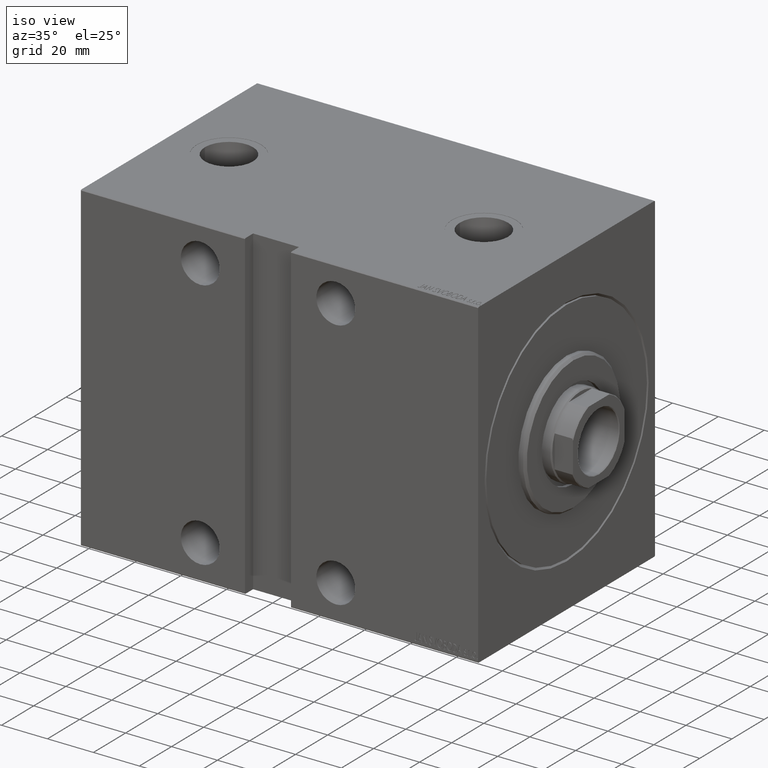
[diagram: clean part render]
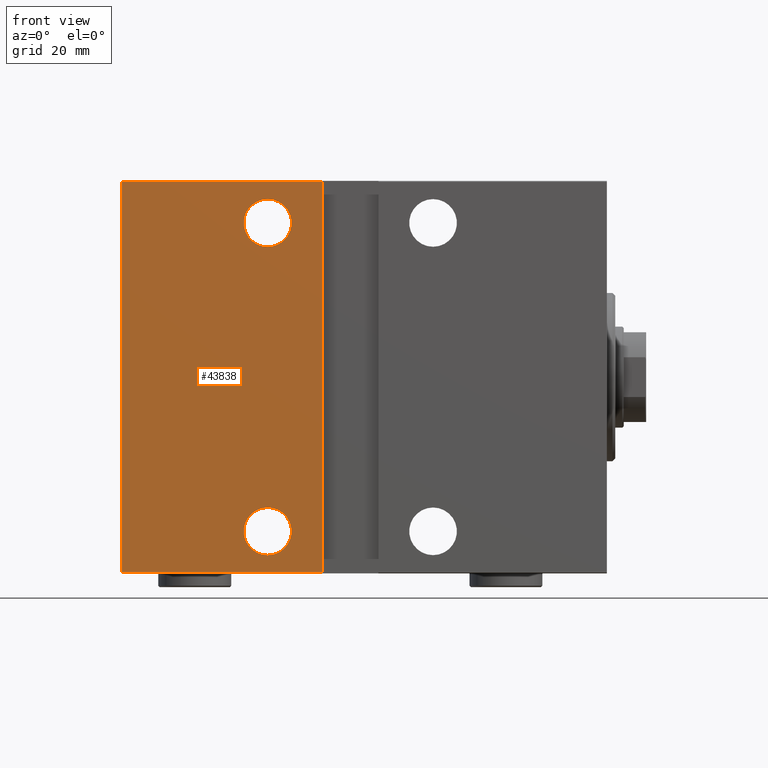
[diagram: tour spotlight — one face highlighted and labeled with its STEP entity id]
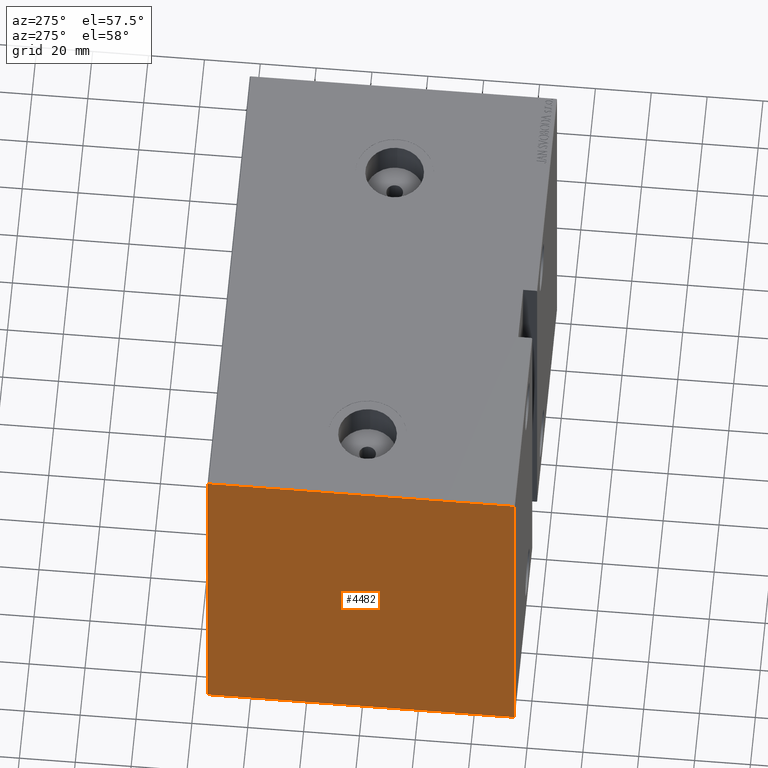
[diagram: tour spotlight — one face highlighted and labeled with its STEP entity id]
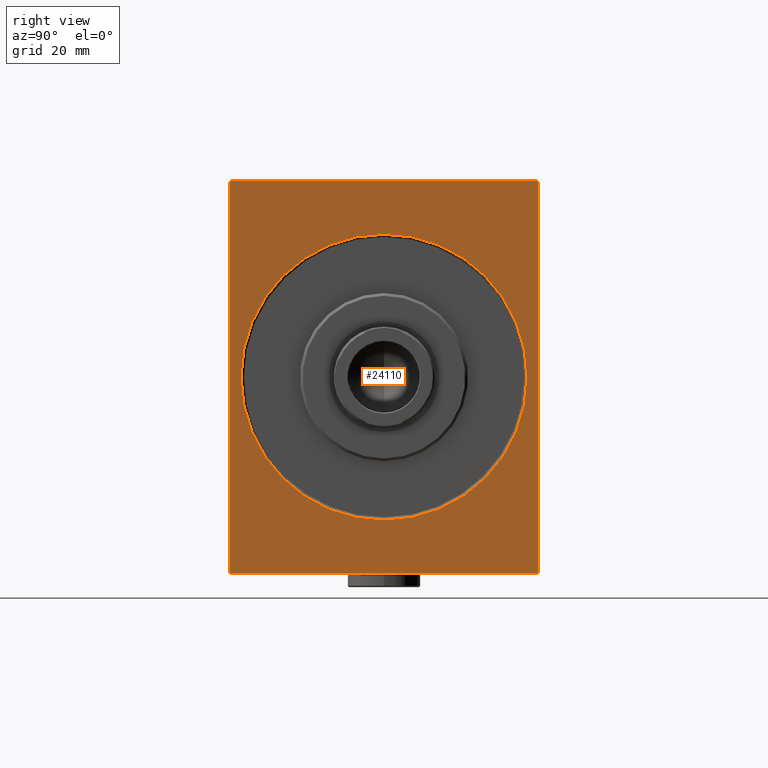
[diagram: tour spotlight — one face highlighted and labeled with its STEP entity id]
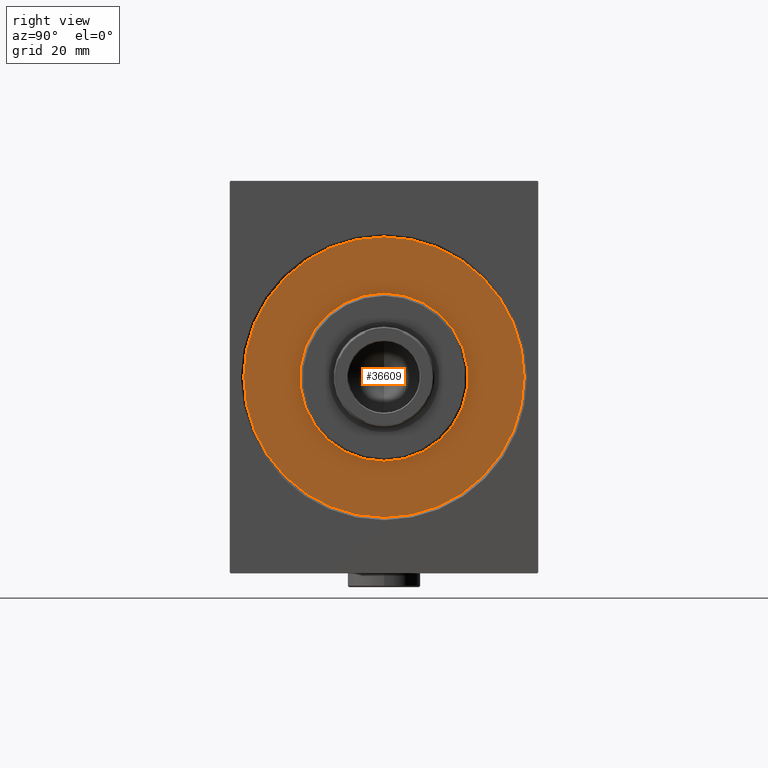
[diagram: tour spotlight — one face highlighted and labeled with its STEP entity id]
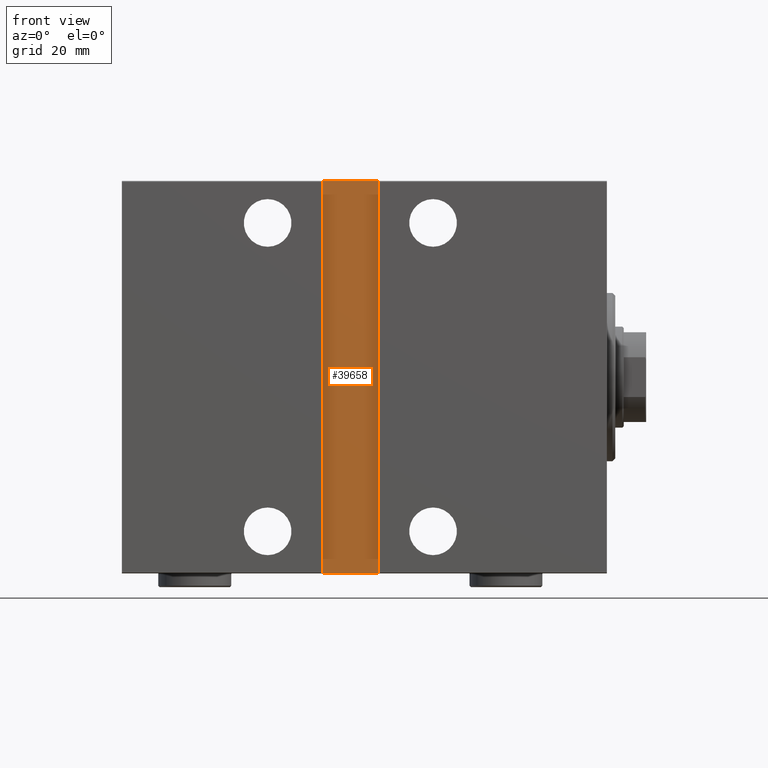
[diagram: tour spotlight — one face highlighted and labeled with its STEP entity id]
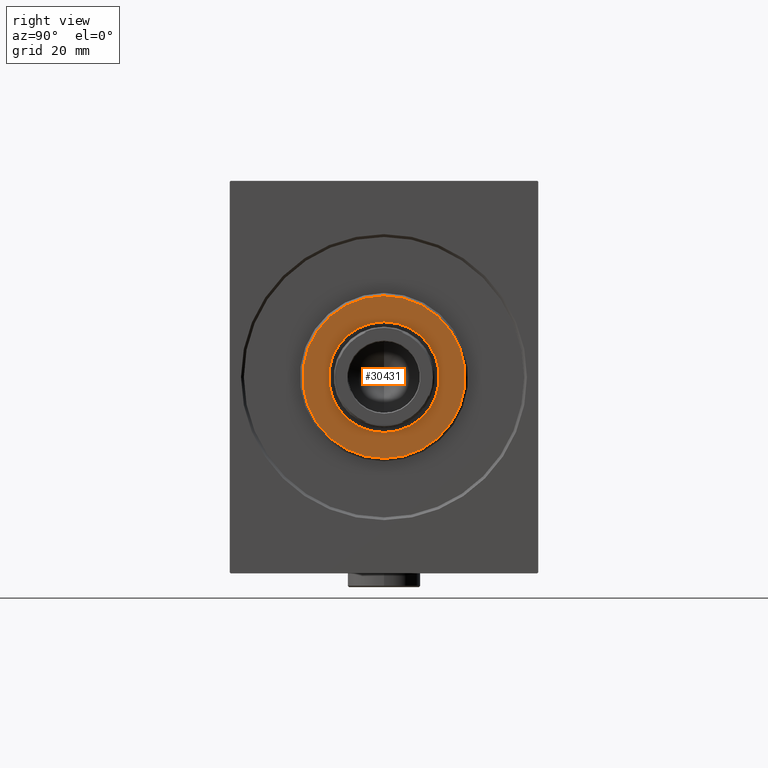
[diagram: tour spotlight — one face highlighted and labeled with its STEP entity id]
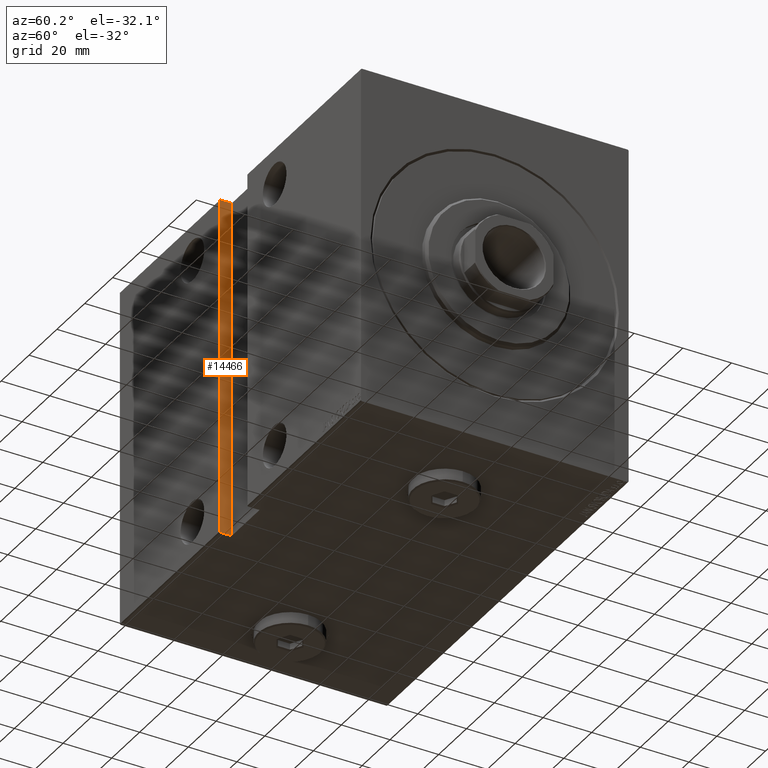
[diagram: tour spotlight — one face highlighted and labeled with its STEP entity id]
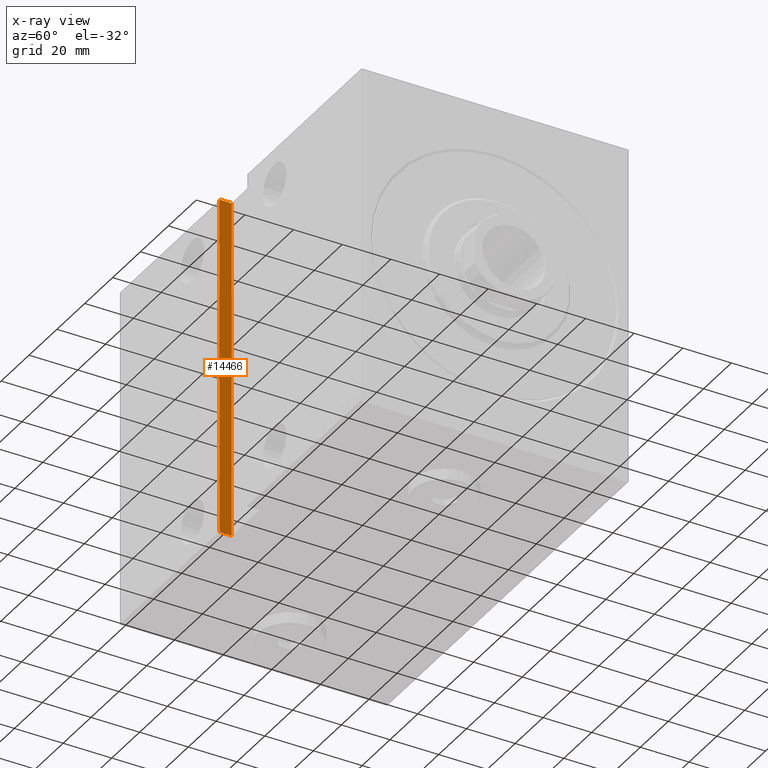
[diagram: x-ray of the same camera — body ghosted, this tour face saturated]
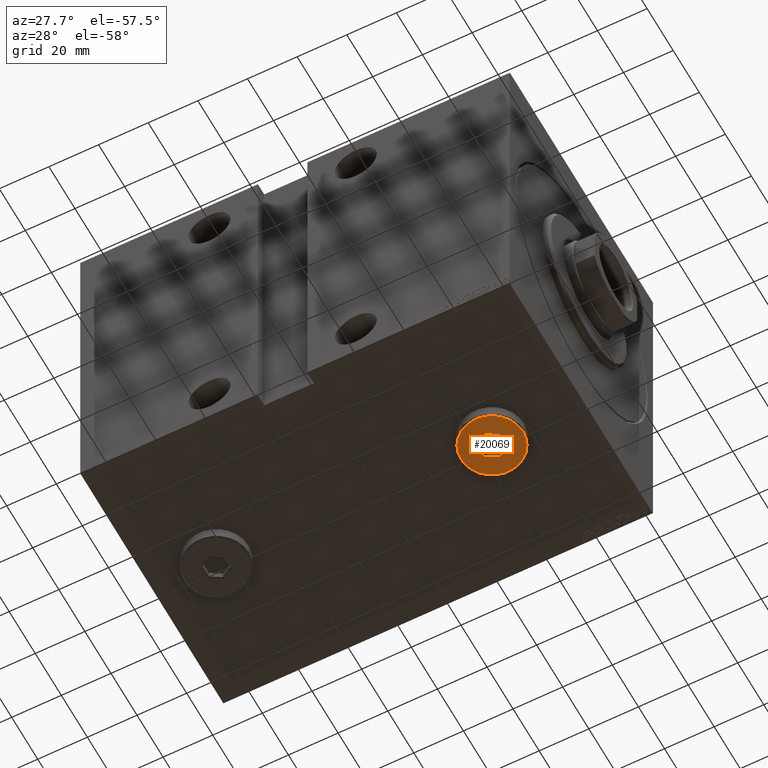
[diagram: tour spotlight — one face highlighted and labeled with its STEP entity id]
A machine part: a face-by-face anatomy tour. The part has 912 B-rep faces; the first image is the clean iso view, then the 8 largest visible faces are spotlighted one at a time (largest first), each with its STEP entity span.

Face 1 — front view, entity #43838. In plain terms, the highlighted planar face has unit normal (-0, 1, -0).
Definition (entity closure, byte-faithful):
#1550 = DIRECTION ( 'NONE',  ( 0.000000000000000000, -1.000000000000000000, -1.982541115402065110E-16 ) ) ;
#2113 = ORIENTED_EDGE ( 'NONE', *, *, #23037, .F. ) ;
#3040 = DIRECTION ( 'NONE',  ( 0.000000000000000000, 0.000000000000000000, -1.000000000000000000 ) ) ;
#3256 = DIRECTION ( 'NONE',  ( 0.000000000000000000, -1.000000000000000000, -1.982541115402065110E-16 ) ) ;
#3519 = VERTEX_POINT ( 'NONE', #39846 ) ;
#4363 = ORIENTED_EDGE ( 'NONE', *, *, #41419, .T. ) ;
#4611 = VERTEX_POINT ( 'NONE', #31190 ) ;
#5810 = DIRECTION ( 'NONE',  ( 0.000000000000000000, 0.000000000000000000, -1.000000000000000000 ) ) ;
#6363 = EDGE_CURVE ( 'NONE', #3519, #17774, #19844, .T. ) ;
#6693 = AXIS2_PLACEMENT_3D ( 'NONE', #40292, #3256, #3040 ) ;
#6967 = AXIS2_PLACEMENT_3D ( 'NONE', #38364, #28487, #35000 ) ;
#7382 = CIRCLE ( 'NONE', #6693, 8.499999999999992895 ) ;
#7781 = EDGE_LOOP ( 'NONE', ( #10437, #44356 ) ) ;
#8532 = EDGE_LOOP ( 'NONE', ( #2113, #4363, #18322, #27305 ) ) ;
#8572 = EDGE_CURVE ( 'NONE', #16832, #38563, #15587, .T. ) ;
#8838 = DIRECTION ( 'NONE',  ( 1.000000000000000000, 0.000000000000000000, 0.000000000000000000 ) ) ;
#10180 = VERTEX_POINT ( 'NONE', #14875 ) ;
#10437 = ORIENTED_EDGE ( 'NONE', *, *, #6363, .T. ) ;
#10820 = DIRECTION ( 'NONE',  ( 9.912705577010316921E-17, 9.912705577010316921E-17, -1.000000000000000000 ) ) ;
#12493 = VECTOR ( 'NONE', #23603, 1000.000000000000000 ) ;
#12755 = CARTESIAN_POINT ( 'NONE',  ( 101.5000000000000000, 55.00000000000000000, 69.69999999999996021 ) ) ;
#14875 = CARTESIAN_POINT ( 'NONE',  ( 121.0000000000000000, 55.00000000000002842, -63.50000000000000000 ) ) ;
#15587 = LINE ( 'NONE', #29260, #24916 ) ;
#16832 = VERTEX_POINT ( 'NONE', #12755 ) ;
#17134 = CARTESIAN_POINT ( 'NONE',  ( 173.0000000000000000, 55.00000000000002132, -69.70000000000000284 ) ) ;
#17774 = VERTEX_POINT ( 'NONE', #36532 ) ;
#17963 = AXIS2_PLACEMENT_3D ( 'NONE', #41972, #24281, #31438 ) ;
#18322 = ORIENTED_EDGE ( 'NONE', *, *, #40682, .F. ) ;
#19844 = CIRCLE ( 'NONE', #23431, 8.499999999999992895 ) ;
#19875 = ORIENTED_EDGE ( 'NONE', *, *, #42909, .T. ) ;
#20155 = DIRECTION ( 'NONE',  ( -1.000000000000000000, 0.000000000000000000, 0.000000000000000000 ) ) ;
#20479 = CARTESIAN_POINT ( 'NONE',  ( 101.5000000000000000, 55.00000000000001421, -70.00000000000008527 ) ) ;
#21329 = FACE_BOUND ( 'NONE', #7781, .T. ) ;
#21647 = ORIENTED_EDGE ( 'NONE', *, *, #26088, .T. ) ;
#22440 = CARTESIAN_POINT ( 'NONE',  ( 173.0000000000000000, 54.99999999999999289, 69.69999999999997442 ) ) ;
#23037 = EDGE_CURVE ( 'NONE', #34497, #38563, #44000, .T. ) ;
#23431 = AXIS2_PLACEMENT_3D ( 'NONE', #30117, #26098, #26540 ) ;
#23603 = DIRECTION ( 'NONE',  ( 0.000000000000000000, -1.982541115402065110E-16, 1.000000000000000000 ) ) ;
#24281 = DIRECTION ( 'NONE',  ( 0.000000000000000000, -1.000000000000000000, -1.982541115402065110E-16 ) ) ;
#24384 = CARTESIAN_POINT ( 'NONE',  ( 173.0000000000000000, 55.00000000000002132, -69.70000000000000284 ) ) ;
#24916 = VECTOR ( 'NONE', #8838, 1000.000000000000000 ) ;
#25540 = CIRCLE ( 'NONE', #36318, 8.500000000000014211 ) ;
#25906 = EDGE_LOOP ( 'NONE', ( #19875, #21647 ) ) ;
#26000 = VERTEX_POINT ( 'NONE', #42051 ) ;
#26088 = EDGE_CURVE ( 'NONE', #10180, #4611, #42331, .T. ) ;
#26098 = DIRECTION ( 'NONE',  ( 0.000000000000000000, -1.000000000000000000, -1.982541115402065110E-16 ) ) ;
#26540 = DIRECTION ( 'NONE',  ( 0.000000000000000000, 0.000000000000000000, -1.000000000000000000 ) ) ;
#27305 = ORIENTED_EDGE ( 'NONE', *, *, #8572, .T. ) ;
#28487 = DIRECTION ( 'NONE',  ( 0.000000000000000000, -1.000000000000000000, -1.982541115402065110E-16 ) ) ;
#28659 = EDGE_CURVE ( 'NONE', #17774, #3519, #7382, .T. ) ;
#29260 = CARTESIAN_POINT ( 'NONE',  ( 173.0000000000000000, 54.99999999999999289, 69.69999999999997442 ) ) ;
#30117 = CARTESIAN_POINT ( 'NONE',  ( 120.9999999999999858, 54.99999999999998579, 55.00000000000000711 ) ) ;
#31190 = CARTESIAN_POINT ( 'NONE',  ( 121.0000000000000000, 55.00000000000002842, -46.49999999999997868 ) ) ;
#31193 = VECTOR ( 'NONE', #10820, 1000.000000000000000 ) ;
#31438 = DIRECTION ( 'NONE',  ( 0.000000000000000000, 0.000000000000000000, -1.000000000000000000 ) ) ;
#32297 = CARTESIAN_POINT ( 'NONE',  ( 121.0000000000000000, 55.00000000000002842, -54.99999999999998579 ) ) ;
#33924 = CARTESIAN_POINT ( 'NONE',  ( 173.0000000000000000, 55.00000000000002132, -70.00000000000001421 ) ) ;
#34275 = LINE ( 'NONE', #24384, #36290 ) ;
#34497 = VERTEX_POINT ( 'NONE', #17134 ) ;
#34777 = PLANE ( 'NONE',  #6967 ) ;
#35000 = DIRECTION ( 'NONE',  ( 0.000000000000000000, 1.982541115402065110E-16, -1.000000000000000000 ) ) ;
#36290 = VECTOR ( 'NONE', #20155, 1000.000000000000000 ) ;
#36318 = AXIS2_PLACEMENT_3D ( 'NONE', #32297, #1550, #5810 ) ;
#36532 = CARTESIAN_POINT ( 'NONE',  ( 120.9999999999999858, 54.99999999999998579, 46.50000000000001421 ) ) ;
#38364 = CARTESIAN_POINT ( 'NONE',  ( 173.0000000000000000, 55.00000000000002132, -70.00000000000001421 ) ) ;
#38563 = VERTEX_POINT ( 'NONE', #22440 ) ;
#38595 = FACE_OUTER_BOUND ( 'NONE', #8532, .T. ) ;
#39846 = CARTESIAN_POINT ( 'NONE',  ( 120.9999999999999858, 54.99999999999998579, 63.50000000000000000 ) ) ;
#40292 = CARTESIAN_POINT ( 'NONE',  ( 120.9999999999999858, 54.99999999999998579, 55.00000000000000711 ) ) ;
#40682 = EDGE_CURVE ( 'NONE', #16832, #26000, #41746, .T. ) ;
#41419 = EDGE_CURVE ( 'NONE', #34497, #26000, #34275, .T. ) ;
#41746 = LINE ( 'NONE', #20479, #31193 ) ;
#41938 = FACE_BOUND ( 'NONE', #25906, .T. ) ;
#41972 = CARTESIAN_POINT ( 'NONE',  ( 121.0000000000000000, 55.00000000000002842, -54.99999999999998579 ) ) ;
#42051 = CARTESIAN_POINT ( 'NONE',  ( 101.5000000000000000, 55.00000000000001421, -69.70000000000000284 ) ) ;
#42331 = CIRCLE ( 'NONE', #17963, 8.500000000000014211 ) ;
#42909 = EDGE_CURVE ( 'NONE', #4611, #10180, #25540, .T. ) ;
#43838 = ADVANCED_FACE ( 'NONE', ( #41938, #21329, #38595 ), #34777, .F. ) ;
#44000 = LINE ( 'NONE', #33924, #12493 ) ;
#44356 = ORIENTED_EDGE ( 'NONE', *, *, #28659, .T. ) ;

Face 2 — auxiliary view, entity #4482. In plain terms, the highlighted planar face has unit normal (-1, 0, 0).
Definition (entity closure, byte-faithful):
#1886 = ORIENTED_EDGE ( 'NONE', *, *, #32963, .T. ) ;
#2166 = DIRECTION ( 'NONE',  ( -0.000000000000000000, -0.7071067811865312525, 0.7071067811865638930 ) ) ;
#2706 = EDGE_CURVE ( 'NONE', #23417, #22982, #24280, .T. ) ;
#4482 = ADVANCED_FACE ( 'NONE', ( #38152 ), #17733, .T. ) ;
#4641 = EDGE_CURVE ( 'NONE', #22982, #7769, #8762, .T. ) ;
#4705 = AXIS2_PLACEMENT_3D ( 'NONE', #24260, #37499, #31417 ) ;
#4851 = EDGE_CURVE ( 'NONE', #35875, #34497, #14110, .T. ) ;
#5282 = VECTOR ( 'NONE', #22566, 1000.000000000000000 ) ;
#6955 = VERTEX_POINT ( 'NONE', #27885 ) ;
#7147 = CARTESIAN_POINT ( 'NONE',  ( 173.0000000000000000, 62.35000000000001563, -62.35000000000001563 ) ) ;
#7769 = VERTEX_POINT ( 'NONE', #8392 ) ;
#8392 = CARTESIAN_POINT ( 'NONE',  ( 173.0000000000000000, -54.99999999999999289, -69.70000000000000284 ) ) ;
#8451 = VERTEX_POINT ( 'NONE', #13197 ) ;
#8762 = LINE ( 'NONE', #19088, #39863 ) ;
#8916 = CARTESIAN_POINT ( 'NONE',  ( 173.0000000000000000, 62.35000000000125198, 62.34999999999837428 ) ) ;
#8940 = VECTOR ( 'NONE', #2166, 1000.000000000000114 ) ;
#9732 = VECTOR ( 'NONE', #37961, 1000.000000000000114 ) ;
#9759 = CARTESIAN_POINT ( 'NONE',  ( 173.0000000000000000, -54.99999999999999289, -70.00000000000001421 ) ) ;
#10090 = DIRECTION ( 'NONE',  ( -0.000000000000000000, 0.7071067811865474617, 0.7071067811865474617 ) ) ;
#12493 = VECTOR ( 'NONE', #23603, 1000.000000000000000 ) ;
#13197 = CARTESIAN_POINT ( 'NONE',  ( 173.0000000000000000, -54.69999999999997442, -70.00000000000001421 ) ) ;
#13280 = EDGE_LOOP ( 'NONE', ( #18377, #18989, #41341, #1886, #38031, #40754, #20329, #31488 ) ) ;
#13552 = DIRECTION ( 'NONE',  ( 0.000000000000000000, -1.000000000000000000, -1.261617073437677999E-16 ) ) ;
#14110 = LINE ( 'NONE', #7147, #29136 ) ;
#14979 = LINE ( 'NONE', #8916, #8940 ) ;
#16041 = LINE ( 'NONE', #9759, #5282 ) ;
#16242 = EDGE_CURVE ( 'NONE', #7769, #8451, #37558, .T. ) ;
#17134 = CARTESIAN_POINT ( 'NONE',  ( 173.0000000000000000, 55.00000000000002132, -69.70000000000000284 ) ) ;
#17733 = PLANE ( 'NONE',  #4705 ) ;
#17797 = CARTESIAN_POINT ( 'NONE',  ( 173.0000000000000000, -62.34999999999999432, -62.34999999999999432 ) ) ;
#18377 = ORIENTED_EDGE ( 'NONE', *, *, #22589, .T. ) ;
#18989 = ORIENTED_EDGE ( 'NONE', *, *, #4851, .T. ) ;
#19088 = CARTESIAN_POINT ( 'NONE',  ( 173.0000000000000000, -54.99999999999999289, 69.99999999999998579 ) ) ;
#19093 = CARTESIAN_POINT ( 'NONE',  ( 173.0000000000000000, 54.69999999999999574, -70.00000000000001421 ) ) ;
#20329 = ORIENTED_EDGE ( 'NONE', *, *, #4641, .T. ) ;
#22255 = CARTESIAN_POINT ( 'NONE',  ( 173.0000000000000000, -54.69999999999999574, 69.99999999999998579 ) ) ;
#22440 = CARTESIAN_POINT ( 'NONE',  ( 173.0000000000000000, 54.99999999999999289, 69.69999999999997442 ) ) ;
#22566 = DIRECTION ( 'NONE',  ( 0.000000000000000000, 1.000000000000000000, 0.000000000000000000 ) ) ;
#22589 = EDGE_CURVE ( 'NONE', #8451, #35875, #16041, .T. ) ;
#22982 = VERTEX_POINT ( 'NONE', #31194 ) ;
#23037 = EDGE_CURVE ( 'NONE', #34497, #38563, #44000, .T. ) ;
#23417 = VERTEX_POINT ( 'NONE', #22255 ) ;
#23603 = DIRECTION ( 'NONE',  ( 0.000000000000000000, -1.982541115402065110E-16, 1.000000000000000000 ) ) ;
#24074 = LINE ( 'NONE', #28474, #26034 ) ;
#24260 = CARTESIAN_POINT ( 'NONE',  ( 173.0000000000000000, 0.000000000000000000, 0.000000000000000000 ) ) ;
#24280 = LINE ( 'NONE', #24491, #9732 ) ;
#24491 = CARTESIAN_POINT ( 'NONE',  ( 173.0000000000000000, -62.34999999999999432, 62.34999999999999432 ) ) ;
#26034 = VECTOR ( 'NONE', #13552, 1000.000000000000000 ) ;
#27885 = CARTESIAN_POINT ( 'NONE',  ( 173.0000000000000000, 54.69999999999997442, 70.00000000000000000 ) ) ;
#28474 = CARTESIAN_POINT ( 'NONE',  ( 173.0000000000000000, 54.99999999999999289, 70.00000000000000000 ) ) ;
#29136 = VECTOR ( 'NONE', #10090, 1000.000000000000114 ) ;
#29333 = EDGE_CURVE ( 'NONE', #6955, #23417, #24074, .T. ) ;
#31194 = CARTESIAN_POINT ( 'NONE',  ( 173.0000000000000000, -54.99999999999999289, 69.70000000000000284 ) ) ;
#31417 = DIRECTION ( 'NONE',  ( 0.000000000000000000, 0.000000000000000000, -1.000000000000000000 ) ) ;
#31488 = ORIENTED_EDGE ( 'NONE', *, *, #16242, .T. ) ;
#31852 = DIRECTION ( 'NONE',  ( 0.000000000000000000, 0.000000000000000000, -1.000000000000000000 ) ) ;
#32963 = EDGE_CURVE ( 'NONE', #38563, #6955, #14979, .T. ) ;
#33924 = CARTESIAN_POINT ( 'NONE',  ( 173.0000000000000000, 55.00000000000002132, -70.00000000000001421 ) ) ;
#34497 = VERTEX_POINT ( 'NONE', #17134 ) ;
#35875 = VERTEX_POINT ( 'NONE', #19093 ) ;
#37499 = DIRECTION ( 'NONE',  ( 1.000000000000000000, 0.000000000000000000, 0.000000000000000000 ) ) ;
#37558 = LINE ( 'NONE', #17797, #43783 ) ;
#37786 = DIRECTION ( 'NONE',  ( -0.000000000000000000, 0.7071067811865474617, -0.7071067811865474617 ) ) ;
#37961 = DIRECTION ( 'NONE',  ( 0.000000000000000000, -0.7071067811865474617, -0.7071067811865474617 ) ) ;
#38031 = ORIENTED_EDGE ( 'NONE', *, *, #29333, .T. ) ;
#38152 = FACE_OUTER_BOUND ( 'NONE', #13280, .T. ) ;
#38563 = VERTEX_POINT ( 'NONE', #22440 ) ;
#39863 = VECTOR ( 'NONE', #31852, 1000.000000000000000 ) ;
#40754 = ORIENTED_EDGE ( 'NONE', *, *, #2706, .T. ) ;
#41341 = ORIENTED_EDGE ( 'NONE', *, *, #23037, .T. ) ;
#43783 = VECTOR ( 'NONE', #37786, 1000.000000000000114 ) ;
#44000 = LINE ( 'NONE', #33924, #12493 ) ;

Face 3 — right view, entity #24110. In plain terms, the highlighted planar face has unit normal (-1, 0, 0).
Definition (entity closure, byte-faithful):
#1033 = ORIENTED_EDGE ( 'NONE', *, *, #42206, .F. ) ;
#1575 = LINE ( 'NONE', #22691, #12136 ) ;
#1601 = LINE ( 'NONE', #12391, #17870 ) ;
#1635 = LINE ( 'NONE', #19161, #36046 ) ;
#2776 = ORIENTED_EDGE ( 'NONE', *, *, #33877, .T. ) ;
#2845 = DIRECTION ( 'NONE',  ( 0.000000000000000000, 0.000000000000000000, -1.000000000000000000 ) ) ;
#3255 = LINE ( 'NONE', #20549, #6038 ) ;
#3485 = DIRECTION ( 'NONE',  ( 0.000000000000000000, 0.000000000000000000, -1.000000000000000000 ) ) ;
#3906 = EDGE_LOOP ( 'NONE', ( #23790, #38896, #12023, #30173, #18034, #38737, #1033, #27639 ) ) ;
#4586 = CARTESIAN_POINT ( 'NONE',  ( 0.000000000000000000, -54.99999999999999289, 69.70000000000000284 ) ) ;
#5001 = CARTESIAN_POINT ( 'NONE',  ( 0.000000000000000000, 54.69999999999997442, 70.00000000000000000 ) ) ;
#5493 = LINE ( 'NONE', #4586, #16014 ) ;
#5626 = CARTESIAN_POINT ( 'NONE',  ( 0.000000000000000000, 54.69999999999997442, 70.00000000000000000 ) ) ;
#6038 = VECTOR ( 'NONE', #30639, 1000.000000000000114 ) ;
#6470 = EDGE_CURVE ( 'NONE', #13925, #27494, #10608, .T. ) ;
#7446 = DIRECTION ( 'NONE',  ( 1.000000000000000000, 0.000000000000000000, 0.000000000000000000 ) ) ;
#7662 = VECTOR ( 'NONE', #23398, 1000.000000000000000 ) ;
#8603 = AXIS2_PLACEMENT_3D ( 'NONE', #24501, #7446, #14403 ) ;
#8820 = DIRECTION ( 'NONE',  ( -0.000000000000000000, 0.7071067811865312525, -0.7071067811865638930 ) ) ;
#9592 = DIRECTION ( 'NONE',  ( 1.000000000000000000, 0.000000000000000000, 0.000000000000000000 ) ) ;
#10017 = CARTESIAN_POINT ( 'NONE',  ( 0.000000000000000000, -54.99999999999999289, 69.99999999999998579 ) ) ;
#10354 = CARTESIAN_POINT ( 'NONE',  ( 0.000000000000000000, -54.69999999999997442, -70.00000000000001421 ) ) ;
#10608 = LINE ( 'NONE', #17100, #7662 ) ;
#11915 = VECTOR ( 'NONE', #3485, 1000.000000000000000 ) ;
#12023 = ORIENTED_EDGE ( 'NONE', *, *, #12902, .F. ) ;
#12136 = VECTOR ( 'NONE', #42639, 1000.000000000000114 ) ;
#12224 = EDGE_CURVE ( 'NONE', #13925, #40033, #1575, .T. ) ;
#12391 = CARTESIAN_POINT ( 'NONE',  ( 0.000000000000000000, 55.00000000000002132, -70.00000000000001421 ) ) ;
#12902 = EDGE_CURVE ( 'NONE', #39406, #15973, #1601, .T. ) ;
#13266 = CIRCLE ( 'NONE', #30445, 50.99999999999993605 ) ;
#13925 = VERTEX_POINT ( 'NONE', #10354 ) ;
#14403 = DIRECTION ( 'NONE',  ( 0.000000000000000000, 0.000000000000000000, -1.000000000000000000 ) ) ;
#15973 = VERTEX_POINT ( 'NONE', #20632 ) ;
#16014 = VECTOR ( 'NONE', #29049, 1000.000000000000114 ) ;
#17100 = CARTESIAN_POINT ( 'NONE',  ( 0.000000000000000000, -54.99999999999999289, -70.00000000000001421 ) ) ;
#17870 = VECTOR ( 'NONE', #18898, 1000.000000000000000 ) ;
#18034 = ORIENTED_EDGE ( 'NONE', *, *, #6470, .F. ) ;
#18898 = DIRECTION ( 'NONE',  ( 0.000000000000000000, -1.982541115402065110E-16, 1.000000000000000000 ) ) ;
#19161 = CARTESIAN_POINT ( 'NONE',  ( 0.000000000000000000, 54.99999999999999289, 70.00000000000000000 ) ) ;
#19350 = EDGE_CURVE ( 'NONE', #40026, #15973, #38428, .T. ) ;
#19530 = CARTESIAN_POINT ( 'NONE',  ( 0.000000000000000000, 54.69999999999999574, -70.00000000000001421 ) ) ;
#19736 = EDGE_CURVE ( 'NONE', #30863, #24543, #23152, .T. ) ;
#20549 = CARTESIAN_POINT ( 'NONE',  ( 0.000000000000000000, 55.00000000000002132, -69.70000000000000284 ) ) ;
#20632 = CARTESIAN_POINT ( 'NONE',  ( 0.000000000000000000, 54.99999999999999289, 69.69999999999997442 ) ) ;
#21252 = VERTEX_POINT ( 'NONE', #37653 ) ;
#22691 = CARTESIAN_POINT ( 'NONE',  ( 0.000000000000000000, -54.69999999999997442, -70.00000000000001421 ) ) ;
#22927 = EDGE_LOOP ( 'NONE', ( #2776, #23857 ) ) ;
#23152 = CIRCLE ( 'NONE', #31010, 50.99999999999993605 ) ;
#23398 = DIRECTION ( 'NONE',  ( 0.000000000000000000, 1.000000000000000000, 0.000000000000000000 ) ) ;
#23790 = ORIENTED_EDGE ( 'NONE', *, *, #26991, .F. ) ;
#23857 = ORIENTED_EDGE ( 'NONE', *, *, #19736, .T. ) ;
#24110 = ADVANCED_FACE ( 'NONE', ( #38186, #31221 ), #27645, .F. ) ;
#24381 = VERTEX_POINT ( 'NONE', #38344 ) ;
#24501 = CARTESIAN_POINT ( 'NONE',  ( 0.000000000000000000, 0.000000000000000000, 0.000000000000000000 ) ) ;
#24543 = VERTEX_POINT ( 'NONE', #39915 ) ;
#26991 = EDGE_CURVE ( 'NONE', #40026, #24381, #1635, .T. ) ;
#27494 = VERTEX_POINT ( 'NONE', #19530 ) ;
#27639 = ORIENTED_EDGE ( 'NONE', *, *, #30220, .T. ) ;
#27645 = PLANE ( 'NONE',  #8603 ) ;
#29049 = DIRECTION ( 'NONE',  ( -0.000000000000000000, 0.7071067811865474617, 0.7071067811865474617 ) ) ;
#29173 = DIRECTION ( 'NONE',  ( 0.000000000000000000, 0.000000000000000000, -1.000000000000000000 ) ) ;
#30042 = DIRECTION ( 'NONE',  ( 1.000000000000000000, 0.000000000000000000, 0.000000000000000000 ) ) ;
#30173 = ORIENTED_EDGE ( 'NONE', *, *, #32208, .T. ) ;
#30220 = EDGE_CURVE ( 'NONE', #21252, #24381, #5493, .T. ) ;
#30445 = AXIS2_PLACEMENT_3D ( 'NONE', #40359, #30042, #29173 ) ;
#30639 = DIRECTION ( 'NONE',  ( 0.000000000000000000, -0.7071067811865474617, -0.7071067811865474617 ) ) ;
#30662 = CARTESIAN_POINT ( 'NONE',  ( 0.000000000000000000, 0.000000000000000000, 0.000000000000000000 ) ) ;
#30863 = VERTEX_POINT ( 'NONE', #36670 ) ;
#31010 = AXIS2_PLACEMENT_3D ( 'NONE', #30662, #9592, #2845 ) ;
#31221 = FACE_OUTER_BOUND ( 'NONE', #3906, .T. ) ;
#32208 = EDGE_CURVE ( 'NONE', #39406, #27494, #3255, .T. ) ;
#32549 = CARTESIAN_POINT ( 'NONE',  ( 0.000000000000000000, -54.99999999999999289, -69.70000000000000284 ) ) ;
#33877 = EDGE_CURVE ( 'NONE', #24543, #30863, #13266, .T. ) ;
#34234 = LINE ( 'NONE', #10017, #11915 ) ;
#36046 = VECTOR ( 'NONE', #40004, 1000.000000000000000 ) ;
#36670 = CARTESIAN_POINT ( 'NONE',  ( 0.000000000000000000, 6.245698675651492556E-15, -50.99999999999993605 ) ) ;
#37399 = CARTESIAN_POINT ( 'NONE',  ( 0.000000000000000000, 55.00000000000002132, -69.70000000000000284 ) ) ;
#37653 = CARTESIAN_POINT ( 'NONE',  ( 0.000000000000000000, -54.99999999999999289, 69.70000000000000284 ) ) ;
#38186 = FACE_BOUND ( 'NONE', #22927, .T. ) ;
#38344 = CARTESIAN_POINT ( 'NONE',  ( 0.000000000000000000, -54.69999999999999574, 69.99999999999998579 ) ) ;
#38428 = LINE ( 'NONE', #5001, #43879 ) ;
#38737 = ORIENTED_EDGE ( 'NONE', *, *, #12224, .T. ) ;
#38896 = ORIENTED_EDGE ( 'NONE', *, *, #19350, .T. ) ;
#39406 = VERTEX_POINT ( 'NONE', #37399 ) ;
#39915 = CARTESIAN_POINT ( 'NONE',  ( 0.000000000000000000, 0.000000000000000000, 50.99999999999993605 ) ) ;
#40004 = DIRECTION ( 'NONE',  ( 0.000000000000000000, -1.000000000000000000, -1.261617073437677999E-16 ) ) ;
#40026 = VERTEX_POINT ( 'NONE', #5626 ) ;
#40033 = VERTEX_POINT ( 'NONE', #32549 ) ;
#40359 = CARTESIAN_POINT ( 'NONE',  ( 0.000000000000000000, 0.000000000000000000, 0.000000000000000000 ) ) ;
#42206 = EDGE_CURVE ( 'NONE', #21252, #40033, #34234, .T. ) ;
#42639 = DIRECTION ( 'NONE',  ( -0.000000000000000000, -0.7071067811865474617, 0.7071067811865474617 ) ) ;
#43879 = VECTOR ( 'NONE', #8820, 1000.000000000000114 ) ;

Face 4 — right view, entity #36609. In plain terms, the highlighted planar face has unit normal (1, 0, 0).
Definition (entity closure, byte-faithful):
#521 = CARTESIAN_POINT ( 'NONE',  ( 0.000000000000000000, 0.000000000000000000, 0.000000000000000000 ) ) ;
#1086 = VERTEX_POINT ( 'NONE', #41159 ) ;
#1409 = DIRECTION ( 'NONE',  ( 0.000000000000000000, 0.000000000000000000, -1.000000000000000000 ) ) ;
#1846 = CIRCLE ( 'NONE', #22657, 30.00000000000000000 ) ;
#4681 = AXIS2_PLACEMENT_3D ( 'NONE', #521, #21177, #20307 ) ;
#5995 = VERTEX_POINT ( 'NONE', #29728 ) ;
#6456 = CARTESIAN_POINT ( 'NONE',  ( 0.000000000000000000, 0.000000000000000000, 0.000000000000000000 ) ) ;
#7540 = CIRCLE ( 'NONE', #4681, 50.00000000000000000 ) ;
#10694 = EDGE_CURVE ( 'NONE', #19284, #24505, #15695, .T. ) ;
#11574 = CARTESIAN_POINT ( 'NONE',  ( 0.000000000000000000, 0.000000000000000000, 0.000000000000000000 ) ) ;
#14525 = ORIENTED_EDGE ( 'NONE', *, *, #20982, .T. ) ;
#15372 = ORIENTED_EDGE ( 'NONE', *, *, #39760, .T. ) ;
#15581 = PLANE ( 'NONE',  #16905 ) ;
#15695 = CIRCLE ( 'NONE', #32130, 30.00000000000000000 ) ;
#15717 = DIRECTION ( 'NONE',  ( 1.000000000000000000, 0.000000000000000000, 0.000000000000000000 ) ) ;
#16905 = AXIS2_PLACEMENT_3D ( 'NONE', #29254, #25196, #1409 ) ;
#17430 = DIRECTION ( 'NONE',  ( 0.000000000000000000, 0.000000000000000000, -1.000000000000000000 ) ) ;
#17848 = DIRECTION ( 'NONE',  ( 0.000000000000000000, 0.000000000000000000, -1.000000000000000000 ) ) ;
#19284 = VERTEX_POINT ( 'NONE', #37334 ) ;
#20307 = DIRECTION ( 'NONE',  ( 0.000000000000000000, 0.000000000000000000, -1.000000000000000000 ) ) ;
#20593 = EDGE_LOOP ( 'NONE', ( #14525, #15372 ) ) ;
#20982 = EDGE_CURVE ( 'NONE', #5995, #1086, #33194, .T. ) ;
#21177 = DIRECTION ( 'NONE',  ( 1.000000000000000000, 0.000000000000000000, 0.000000000000000000 ) ) ;
#21735 = ORIENTED_EDGE ( 'NONE', *, *, #10694, .F. ) ;
#22081 = FACE_BOUND ( 'NONE', #43054, .T. ) ;
#22432 = CARTESIAN_POINT ( 'NONE',  ( 0.000000000000000000, 3.673940397442059178E-15, -30.00000000000000000 ) ) ;
#22458 = AXIS2_PLACEMENT_3D ( 'NONE', #28480, #15717, #32298 ) ;
#22657 = AXIS2_PLACEMENT_3D ( 'NONE', #6456, #30681, #17430 ) ;
#24505 = VERTEX_POINT ( 'NONE', #22432 ) ;
#25196 = DIRECTION ( 'NONE',  ( 1.000000000000000000, 0.000000000000000000, 0.000000000000000000 ) ) ;
#28480 = CARTESIAN_POINT ( 'NONE',  ( 0.000000000000000000, 0.000000000000000000, 0.000000000000000000 ) ) ;
#29254 = CARTESIAN_POINT ( 'NONE',  ( 0.000000000000000000, 0.000000000000000000, 0.000000000000000000 ) ) ;
#29728 = CARTESIAN_POINT ( 'NONE',  ( 0.000000000000000000, 0.000000000000000000, -50.00000000000000000 ) ) ;
#30681 = DIRECTION ( 'NONE',  ( 1.000000000000000000, -0.000000000000000000, 0.000000000000000000 ) ) ;
#32130 = AXIS2_PLACEMENT_3D ( 'NONE', #11574, #35575, #17848 ) ;
#32298 = DIRECTION ( 'NONE',  ( 0.000000000000000000, 0.000000000000000000, -1.000000000000000000 ) ) ;
#32383 = FACE_OUTER_BOUND ( 'NONE', #20593, .T. ) ;
#33194 = CIRCLE ( 'NONE', #22458, 50.00000000000000000 ) ;
#33909 = ORIENTED_EDGE ( 'NONE', *, *, #36618, .F. ) ;
#35575 = DIRECTION ( 'NONE',  ( 1.000000000000000000, -0.000000000000000000, 0.000000000000000000 ) ) ;
#36609 = ADVANCED_FACE ( 'NONE', ( #32383, #22081 ), #15581, .T. ) ;
#36618 = EDGE_CURVE ( 'NONE', #24505, #19284, #1846, .T. ) ;
#37334 = CARTESIAN_POINT ( 'NONE',  ( 0.000000000000000000, 0.000000000000000000, 30.00000000000000000 ) ) ;
#39760 = EDGE_CURVE ( 'NONE', #1086, #5995, #7540, .T. ) ;
#41159 = CARTESIAN_POINT ( 'NONE',  ( 0.000000000000000000, 6.123233995736766085E-15, 50.00000000000000000 ) ) ;
#43054 = EDGE_LOOP ( 'NONE', ( #21735, #33909 ) ) ;

Face 5 — front view, entity #39658. In plain terms, the highlighted planar face has unit normal (-0, 1, -0).
Definition (entity closure, byte-faithful):
#363 = CARTESIAN_POINT ( 'NONE',  ( 81.49999999999998579, 50.00000000000001421, -70.00000000000008527 ) ) ;
#549 = VERTEX_POINT ( 'NONE', #17813 ) ;
#1641 = VECTOR ( 'NONE', #13621, 1000.000000000000000 ) ;
#2966 = DIRECTION ( 'NONE',  ( 0.000000000000000000, -9.912705577010316921E-17, 1.000000000000000000 ) ) ;
#3348 = AXIS2_PLACEMENT_3D ( 'NONE', #26585, #39830, #27034 ) ;
#4784 = CARTESIAN_POINT ( 'NONE',  ( 101.5000000000000000, 50.00000000000001421, -70.00000000000008527 ) ) ;
#5128 = CARTESIAN_POINT ( 'NONE',  ( 81.49999999999998579, 50.00000000000000000, 70.00000000000001421 ) ) ;
#5683 = VECTOR ( 'NONE', #18479, 1000.000000000000000 ) ;
#8004 = LINE ( 'NONE', #29535, #10289 ) ;
#8289 = VERTEX_POINT ( 'NONE', #5128 ) ;
#9347 = VERTEX_POINT ( 'NONE', #363 ) ;
#10002 = ORIENTED_EDGE ( 'NONE', *, *, #11924, .T. ) ;
#10289 = VECTOR ( 'NONE', #18329, 1000.000000000000000 ) ;
#11924 = EDGE_CURVE ( 'NONE', #549, #9347, #35526, .T. ) ;
#12862 = LINE ( 'NONE', #40669, #43196 ) ;
#12909 = FACE_OUTER_BOUND ( 'NONE', #34754, .T. ) ;
#13621 = DIRECTION ( 'NONE',  ( 1.000000000000000000, -0.000000000000000000, -0.000000000000000000 ) ) ;
#15955 = VERTEX_POINT ( 'NONE', #41028 ) ;
#17813 = CARTESIAN_POINT ( 'NONE',  ( 101.5000000000000000, 50.00000000000001421, -70.00000000000001421 ) ) ;
#18329 = DIRECTION ( 'NONE',  ( 9.912705577010316921E-17, 9.912705577010316921E-17, -1.000000000000000000 ) ) ;
#18479 = DIRECTION ( 'NONE',  ( -1.000000000000000000, 0.000000000000000000, 0.000000000000000000 ) ) ;
#19810 = EDGE_CURVE ( 'NONE', #8289, #15955, #34029, .T. ) ;
#22773 = ORIENTED_EDGE ( 'NONE', *, *, #27149, .T. ) ;
#26585 = CARTESIAN_POINT ( 'NONE',  ( 0.000000000000000000, 50.00000000000000711, 4.821179530636835640E-15 ) ) ;
#27034 = DIRECTION ( 'NONE',  ( 0.000000000000000000, 9.912705577010316921E-17, -1.000000000000000000 ) ) ;
#27149 = EDGE_CURVE ( 'NONE', #9347, #8289, #12862, .T. ) ;
#28601 = EDGE_CURVE ( 'NONE', #15955, #549, #8004, .T. ) ;
#29535 = CARTESIAN_POINT ( 'NONE',  ( 101.5000000000000000, 50.00000000000001421, -70.00000000000008527 ) ) ;
#34029 = LINE ( 'NONE', #44331, #1641 ) ;
#34754 = EDGE_LOOP ( 'NONE', ( #22773, #39917, #36206, #10002 ) ) ;
#35526 = LINE ( 'NONE', #4784, #5683 ) ;
#36206 = ORIENTED_EDGE ( 'NONE', *, *, #28601, .T. ) ;
#39658 = ADVANCED_FACE ( 'NONE', ( #12909 ), #43621, .F. ) ;
#39830 = DIRECTION ( 'NONE',  ( 0.000000000000000000, -1.000000000000000000, -9.912705577010316921E-17 ) ) ;
#39917 = ORIENTED_EDGE ( 'NONE', *, *, #19810, .T. ) ;
#40669 = CARTESIAN_POINT ( 'NONE',  ( 81.49999999999998579, 50.00000000000001421, -70.00000000000008527 ) ) ;
#41028 = CARTESIAN_POINT ( 'NONE',  ( 101.5000000000000000, 50.00000000000000000, 70.00000000000001421 ) ) ;
#43196 = VECTOR ( 'NONE', #2966, 1000.000000000000000 ) ;
#43621 = PLANE ( 'NONE',  #3348 ) ;
#44331 = CARTESIAN_POINT ( 'NONE',  ( 101.5000000000000000, 50.00000000000000000, 70.00000000000001421 ) ) ;

Face 6 — right view, entity #30431. In plain terms, the highlighted planar face has unit normal (1, 0, 0).
Definition (entity closure, byte-faithful):
#658 = ORIENTED_EDGE ( 'NONE', *, *, #43339, .T. ) ;
#5791 = CARTESIAN_POINT ( 'NONE',  ( 3.000000000000000000, 0.000000000000000000, 28.99999999999998224 ) ) ;
#6195 = ORIENTED_EDGE ( 'NONE', *, *, #27047, .T. ) ;
#6202 = AXIS2_PLACEMENT_3D ( 'NONE', #41236, #38537, #42111 ) ;
#6657 = CIRCLE ( 'NONE', #21681, 19.75000000000000000 ) ;
#7903 = PLANE ( 'NONE',  #33200 ) ;
#9054 = CARTESIAN_POINT ( 'NONE',  ( 3.000000000000000000, 0.000000000000000000, 0.000000000000000000 ) ) ;
#9236 = VERTEX_POINT ( 'NONE', #5791 ) ;
#11731 = DIRECTION ( 'NONE',  ( 0.000000000000000000, 0.000000000000000000, -1.000000000000000000 ) ) ;
#12233 = VERTEX_POINT ( 'NONE', #22243 ) ;
#14984 = DIRECTION ( 'NONE',  ( 0.000000000000000000, 0.000000000000000000, -1.000000000000000000 ) ) ;
#16940 = DIRECTION ( 'NONE',  ( 1.000000000000000000, -0.000000000000000000, 0.000000000000000000 ) ) ;
#17583 = CIRCLE ( 'NONE', #34786, 28.99999999999998224 ) ;
#18934 = DIRECTION ( 'NONE',  ( -1.000000000000000000, 0.000000000000000000, -0.000000000000000000 ) ) ;
#19823 = CIRCLE ( 'NONE', #6202, 19.75000000000000000 ) ;
#21681 = AXIS2_PLACEMENT_3D ( 'NONE', #9054, #18934, #32385 ) ;
#21937 = CARTESIAN_POINT ( 'NONE',  ( 3.000000000000000000, 0.000000000000000000, 0.000000000000000000 ) ) ;
#22243 = CARTESIAN_POINT ( 'NONE',  ( 3.000000000000000000, 3.612708057484690026E-15, -28.99999999999998224 ) ) ;
#22480 = VERTEX_POINT ( 'NONE', #36675 ) ;
#22538 = ORIENTED_EDGE ( 'NONE', *, *, #43132, .T. ) ;
#26119 = ORIENTED_EDGE ( 'NONE', *, *, #40362, .T. ) ;
#27047 = EDGE_CURVE ( 'NONE', #22480, #36261, #6657, .T. ) ;
#28657 = DIRECTION ( 'NONE',  ( 1.000000000000000000, -0.000000000000000000, 0.000000000000000000 ) ) ;
#28766 = DIRECTION ( 'NONE',  ( 1.000000000000000000, -0.000000000000000000, 0.000000000000000000 ) ) ;
#28994 = FACE_OUTER_BOUND ( 'NONE', #29539, .T. ) ;
#29539 = EDGE_LOOP ( 'NONE', ( #26119, #658 ) ) ;
#29731 = DIRECTION ( 'NONE',  ( 0.000000000000000000, 0.000000000000000000, -1.000000000000000000 ) ) ;
#30431 = ADVANCED_FACE ( 'NONE', ( #28994, #38646 ), #7903, .T. ) ;
#31316 = CARTESIAN_POINT ( 'NONE',  ( 3.000000000000000000, 2.418677428316022331E-15, -19.75000000000000000 ) ) ;
#32385 = DIRECTION ( 'NONE',  ( 0.000000000000000000, 0.000000000000000000, -1.000000000000000000 ) ) ;
#33102 = CARTESIAN_POINT ( 'NONE',  ( 3.000000000000000000, 0.000000000000000000, 0.000000000000000000 ) ) ;
#33200 = AXIS2_PLACEMENT_3D ( 'NONE', #42905, #28766, #11731 ) ;
#34786 = AXIS2_PLACEMENT_3D ( 'NONE', #33102, #16940, #29731 ) ;
#36261 = VERTEX_POINT ( 'NONE', #31316 ) ;
#36675 = CARTESIAN_POINT ( 'NONE',  ( 3.000000000000000000, 0.000000000000000000, 19.75000000000000000 ) ) ;
#38445 = AXIS2_PLACEMENT_3D ( 'NONE', #21937, #28657, #14984 ) ;
#38537 = DIRECTION ( 'NONE',  ( -1.000000000000000000, 0.000000000000000000, -0.000000000000000000 ) ) ;
#38646 = FACE_BOUND ( 'NONE', #43644, .T. ) ;
#40362 = EDGE_CURVE ( 'NONE', #9236, #12233, #17583, .T. ) ;
#41236 = CARTESIAN_POINT ( 'NONE',  ( 3.000000000000000000, 0.000000000000000000, 0.000000000000000000 ) ) ;
#41297 = CIRCLE ( 'NONE', #38445, 28.99999999999998224 ) ;
#42111 = DIRECTION ( 'NONE',  ( 0.000000000000000000, 0.000000000000000000, -1.000000000000000000 ) ) ;
#42905 = CARTESIAN_POINT ( 'NONE',  ( 3.000000000000000000, 0.000000000000000000, 0.000000000000000000 ) ) ;
#43132 = EDGE_CURVE ( 'NONE', #36261, #22480, #19823, .T. ) ;
#43339 = EDGE_CURVE ( 'NONE', #12233, #9236, #41297, .T. ) ;
#43644 = EDGE_LOOP ( 'NONE', ( #6195, #22538 ) ) ;

Face 7 — auxiliary view, entity #14466. An x-ray twin of the same camera follows (body ghosted, this face saturated) — the face is partly hidden behind the body. In plain terms, the highlighted planar face has unit normal (-1, 0, 0).
Definition (entity closure, byte-faithful):
#210 = ORIENTED_EDGE ( 'NONE', *, *, #31483, .T. ) ;
#549 = VERTEX_POINT ( 'NONE', #17813 ) ;
#6575 = EDGE_CURVE ( 'NONE', #549, #22805, #27853, .T. ) ;
#6906 = CARTESIAN_POINT ( 'NONE',  ( 101.5000000000000000, 55.00000000000001421, -69.70000000000000284 ) ) ;
#7340 = LINE ( 'NONE', #20823, #31807 ) ;
#7432 = DIRECTION ( 'NONE',  ( -0.000000000000000000, 1.000000000000000000, 1.261617073437677752E-16 ) ) ;
#7564 = DIRECTION ( 'NONE',  ( 7.009341333409703478E-17, -0.7071067811865474617, -0.7071067811865474617 ) ) ;
#8004 = LINE ( 'NONE', #29535, #10289 ) ;
#9370 = FACE_OUTER_BOUND ( 'NONE', #24778, .T. ) ;
#10289 = VECTOR ( 'NONE', #18329, 1000.000000000000000 ) ;
#10820 = DIRECTION ( 'NONE',  ( 9.912705577010316921E-17, 9.912705577010316921E-17, -1.000000000000000000 ) ) ;
#11053 = VECTOR ( 'NONE', #7564, 1000.000000000000114 ) ;
#11783 = ORIENTED_EDGE ( 'NONE', *, *, #29521, .T. ) ;
#12467 = VECTOR ( 'NONE', #33404, 1000.000000000000000 ) ;
#12755 = CARTESIAN_POINT ( 'NONE',  ( 101.5000000000000000, 55.00000000000000000, 69.69999999999996021 ) ) ;
#14466 = ADVANCED_FACE ( 'NONE', ( #9370 ), #20131, .F. ) ;
#15955 = VERTEX_POINT ( 'NONE', #41028 ) ;
#16355 = LINE ( 'NONE', #30473, #12467 ) ;
#16832 = VERTEX_POINT ( 'NONE', #12755 ) ;
#17813 = CARTESIAN_POINT ( 'NONE',  ( 101.5000000000000000, 50.00000000000001421, -70.00000000000001421 ) ) ;
#18329 = DIRECTION ( 'NONE',  ( 9.912705577010316921E-17, 9.912705577010316921E-17, -1.000000000000000000 ) ) ;
#20131 = PLANE ( 'NONE',  #32340 ) ;
#20479 = CARTESIAN_POINT ( 'NONE',  ( 101.5000000000000000, 55.00000000000001421, -70.00000000000008527 ) ) ;
#20823 = CARTESIAN_POINT ( 'NONE',  ( 101.5000000000000000, 54.69999999999997442, 70.00000000000000000 ) ) ;
#22805 = VERTEX_POINT ( 'NONE', #25410 ) ;
#23710 = DIRECTION ( 'NONE',  ( 9.912705577010318154E-17, 0.000000000000000000, -1.000000000000000000 ) ) ;
#24164 = ORIENTED_EDGE ( 'NONE', *, *, #40682, .T. ) ;
#24486 = CARTESIAN_POINT ( 'NONE',  ( 101.5000000000000000, 50.00000000000001421, -70.00000000000008527 ) ) ;
#24778 = EDGE_LOOP ( 'NONE', ( #24164, #39691, #30241, #38257, #11783, #210 ) ) ;
#25410 = CARTESIAN_POINT ( 'NONE',  ( 101.5000000000000000, 54.69999999999999574, -70.00000000000008527 ) ) ;
#25778 = VERTEX_POINT ( 'NONE', #26836 ) ;
#26000 = VERTEX_POINT ( 'NONE', #42051 ) ;
#26633 = DIRECTION ( 'NONE',  ( 1.000000000000000000, -1.250603859991710384E-32, 9.912705577010318154E-17 ) ) ;
#26836 = CARTESIAN_POINT ( 'NONE',  ( 101.5000000000000000, 54.69999999999997442, 70.00000000000001421 ) ) ;
#27077 = CARTESIAN_POINT ( 'NONE',  ( 101.5000000000000000, 50.00000000000001421, -70.00000000000008527 ) ) ;
#27762 = LINE ( 'NONE', #6906, #11053 ) ;
#27853 = LINE ( 'NONE', #24486, #29856 ) ;
#28601 = EDGE_CURVE ( 'NONE', #15955, #549, #8004, .T. ) ;
#29521 = EDGE_CURVE ( 'NONE', #15955, #25778, #16355, .T. ) ;
#29535 = CARTESIAN_POINT ( 'NONE',  ( 101.5000000000000000, 50.00000000000001421, -70.00000000000008527 ) ) ;
#29856 = VECTOR ( 'NONE', #7432, 1000.000000000000000 ) ;
#30241 = ORIENTED_EDGE ( 'NONE', *, *, #6575, .F. ) ;
#30473 = CARTESIAN_POINT ( 'NONE',  ( 101.5000000000000000, 50.00000000000000000, 70.00000000000001421 ) ) ;
#31119 = DIRECTION ( 'NONE',  ( 7.009341333409867413E-17, 0.7071067811865312525, -0.7071067811865638930 ) ) ;
#31193 = VECTOR ( 'NONE', #10820, 1000.000000000000000 ) ;
#31432 = EDGE_CURVE ( 'NONE', #26000, #22805, #27762, .T. ) ;
#31483 = EDGE_CURVE ( 'NONE', #25778, #16832, #7340, .T. ) ;
#31807 = VECTOR ( 'NONE', #31119, 1000.000000000000114 ) ;
#32340 = AXIS2_PLACEMENT_3D ( 'NONE', #27077, #26633, #23710 ) ;
#33404 = DIRECTION ( 'NONE',  ( -0.000000000000000000, 1.000000000000000000, 1.261617073437677752E-16 ) ) ;
#38257 = ORIENTED_EDGE ( 'NONE', *, *, #28601, .F. ) ;
#39691 = ORIENTED_EDGE ( 'NONE', *, *, #31432, .T. ) ;
#40682 = EDGE_CURVE ( 'NONE', #16832, #26000, #41746, .T. ) ;
#41028 = CARTESIAN_POINT ( 'NONE',  ( 101.5000000000000000, 50.00000000000000000, 70.00000000000001421 ) ) ;
#41746 = LINE ( 'NONE', #20479, #31193 ) ;
#42051 = CARTESIAN_POINT ( 'NONE',  ( 101.5000000000000000, 55.00000000000001421, -69.70000000000000284 ) ) ;

Face 8 — auxiliary view, entity #20069. In plain terms, the highlighted planar face has unit normal (-0, 0, -1).
Definition (entity closure, byte-faithful):
#320 = AXIS2_PLACEMENT_3D ( 'NONE', #43379, #16028, #9746 ) ;
#480 = EDGE_CURVE ( 'NONE', #30736, #10663, #11768, .T. ) ;
#615 = DIRECTION ( 'NONE',  ( 0.8660254037844387076, -0.4999999999999998890, 0.000000000000000000 ) ) ;
#641 = ORIENTED_EDGE ( 'NONE', *, *, #39511, .T. ) ;
#654 = DIRECTION ( 'NONE',  ( 1.000000000000000000, 0.000000000000000000, 0.000000000000000000 ) ) ;
#718 = CIRCLE ( 'NONE', #17231, 12.50000000000001066 ) ;
#1282 = CARTESIAN_POINT ( 'NONE',  ( 4.583333333333339255, 2.934863868380602092, 5.000000000000000000 ) ) ;
#1420 = LINE ( 'NONE', #32624, #39164 ) ;
#3062 = LINE ( 'NONE', #44111, #19560 ) ;
#3962 = VERTEX_POINT ( 'NONE', #17539 ) ;
#4232 = ORIENTED_EDGE ( 'NONE', *, *, #480, .T. ) ;
#4353 = CARTESIAN_POINT ( 'NONE',  ( -4.583333333333337478, -2.934863868380603424, 5.000000000000000000 ) ) ;
#4849 = ORIENTED_EDGE ( 'NONE', *, *, #33313, .T. ) ;
#5065 = CARTESIAN_POINT ( 'NONE',  ( 0.000000000000000000, 0.000000000000000000, 5.000000000000000000 ) ) ;
#5510 = DIRECTION ( 'NONE',  ( 0.000000000000000000, 0.000000000000000000, 1.000000000000000000 ) ) ;
#7841 = CARTESIAN_POINT ( 'NONE',  ( 0.000000000000000000, 0.000000000000000000, 5.000000000000000000 ) ) ;
#8641 = ORIENTED_EDGE ( 'NONE', *, *, #44204, .T. ) ;
#8845 = DIRECTION ( 'NONE',  ( 0.000000000000000000, 1.000000000000000000, 0.000000000000000000 ) ) ;
#9746 = DIRECTION ( 'NONE',  ( 1.000000000000000000, 0.000000000000000000, 0.000000000000000000 ) ) ;
#10663 = VERTEX_POINT ( 'NONE', #10912 ) ;
#10912 = CARTESIAN_POINT ( 'NONE',  ( -1.883403334290581714E-15, -5.581052602166390209, 5.000000000000000000 ) ) ;
#11095 = DIRECTION ( 'NONE',  ( -0.8660254037844387076, -0.4999999999999998335, 0.000000000000000000 ) ) ;
#11768 = LINE ( 'NONE', #28800, #25506 ) ;
#12963 = LINE ( 'NONE', #23057, #23413 ) ;
#13369 = VERTEX_POINT ( 'NONE', #40802 ) ;
#15277 = AXIS2_PLACEMENT_3D ( 'NONE', #5065, #5510, #19200 ) ;
#15658 = ORIENTED_EDGE ( 'NONE', *, *, #19753, .T. ) ;
#16028 = DIRECTION ( 'NONE',  ( 0.000000000000000000, 0.000000000000000000, 1.000000000000000000 ) ) ;
#17231 = AXIS2_PLACEMENT_3D ( 'NONE', #7841, #35206, #654 ) ;
#17263 = VERTEX_POINT ( 'NONE', #43628 ) ;
#17539 = CARTESIAN_POINT ( 'NONE',  ( -4.833333333333340143, 2.790526301083195104, 5.000000000000000000 ) ) ;
#18978 = FACE_OUTER_BOUND ( 'NONE', #37486, .T. ) ;
#19200 = DIRECTION ( 'NONE',  ( 1.000000000000000000, 0.000000000000000000, -0.000000000000000000 ) ) ;
#19283 = ORIENTED_EDGE ( 'NONE', *, *, #28854, .T. ) ;
#19560 = VECTOR ( 'NONE', #40316, 1000.000000000000000 ) ;
#19753 = EDGE_CURVE ( 'NONE', #13369, #30736, #3062, .T. ) ;
#20069 = ADVANCED_FACE ( 'NONE', ( #35805, #18978 ), #36246, .T. ) ;
#22919 = ORIENTED_EDGE ( 'NONE', *, *, #37123, .T. ) ;
#23057 = CARTESIAN_POINT ( 'NONE',  ( -0.2500000000000021094, 5.436715034868981000, 5.000000000000000000 ) ) ;
#23413 = VECTOR ( 'NONE', #36734, 1000.000000000000114 ) ;
#24130 = DIRECTION ( 'NONE',  ( -0.8660254037844385966, 0.5000000000000001110, 0.000000000000000000 ) ) ;
#25297 = EDGE_CURVE ( 'NONE', #28884, #39380, #718, .T. ) ;
#25413 = CIRCLE ( 'NONE', #320, 12.50000000000001066 ) ;
#25506 = VECTOR ( 'NONE', #11095, 1000.000000000000000 ) ;
#25630 = CARTESIAN_POINT ( 'NONE',  ( -4.833333333333340143, -2.790526301083195104, 5.000000000000000000 ) ) ;
#27434 = VECTOR ( 'NONE', #24130, 1000.000000000000114 ) ;
#28800 = CARTESIAN_POINT ( 'NONE',  ( 0.2500000000000015543, -5.436715034868981888, 5.000000000000000000 ) ) ;
#28854 = EDGE_CURVE ( 'NONE', #10663, #42758, #34662, .T. ) ;
#28884 = VERTEX_POINT ( 'NONE', #35320 ) ;
#30217 = CARTESIAN_POINT ( 'NONE',  ( 12.50000000000001066, 1.561424668912876097E-15, 5.000000000000000000 ) ) ;
#30736 = VERTEX_POINT ( 'NONE', #38040 ) ;
#31397 = ORIENTED_EDGE ( 'NONE', *, *, #25297, .T. ) ;
#32624 = CARTESIAN_POINT ( 'NONE',  ( -4.833333333333340143, 2.501851166488380240, 5.000000000000000000 ) ) ;
#33313 = EDGE_CURVE ( 'NONE', #39380, #28884, #25413, .T. ) ;
#34662 = LINE ( 'NONE', #4353, #27434 ) ;
#35206 = DIRECTION ( 'NONE',  ( 0.000000000000000000, 0.000000000000000000, 1.000000000000000000 ) ) ;
#35320 = CARTESIAN_POINT ( 'NONE',  ( -12.50000000000001066, 0.000000000000000000, 5.000000000000000000 ) ) ;
#35805 = FACE_BOUND ( 'NONE', #43271, .T. ) ;
#36246 = PLANE ( 'NONE',  #15277 ) ;
#36352 = VECTOR ( 'NONE', #615, 1000.000000000000000 ) ;
#36734 = DIRECTION ( 'NONE',  ( 0.8660254037844388186, 0.4999999999999997780, 0.000000000000000000 ) ) ;
#37123 = EDGE_CURVE ( 'NONE', #42758, #3962, #1420, .T. ) ;
#37486 = EDGE_LOOP ( 'NONE', ( #31397, #4849 ) ) ;
#38040 = CARTESIAN_POINT ( 'NONE',  ( 4.833333333333341919, -2.790526301083194216, 5.000000000000000000 ) ) ;
#39164 = VECTOR ( 'NONE', #8845, 1000.000000000000000 ) ;
#39380 = VERTEX_POINT ( 'NONE', #30217 ) ;
#39511 = EDGE_CURVE ( 'NONE', #3962, #17263, #12963, .T. ) ;
#40316 = DIRECTION ( 'NONE',  ( 0.000000000000000000, -1.000000000000000000, 0.000000000000000000 ) ) ;
#40802 = CARTESIAN_POINT ( 'NONE',  ( 4.833333333333341919, 2.790526301083194216, 5.000000000000000000 ) ) ;
#41458 = LINE ( 'NONE', #1282, #36352 ) ;
#42758 = VERTEX_POINT ( 'NONE', #25630 ) ;
#43271 = EDGE_LOOP ( 'NONE', ( #22919, #641, #8641, #15658, #4232, #19283 ) ) ;
#43379 = CARTESIAN_POINT ( 'NONE',  ( 0.000000000000000000, 0.000000000000000000, 5.000000000000000000 ) ) ;
#43628 = CARTESIAN_POINT ( 'NONE',  ( 1.144664513637780713E-15, 5.581052602166389320, 5.000000000000000000 ) ) ;
#44111 = CARTESIAN_POINT ( 'NONE',  ( 4.833333333333341919, -2.501851166488378908, 5.000000000000000000 ) ) ;
#44204 = EDGE_CURVE ( 'NONE', #17263, #13369, #41458, .T. ) ;